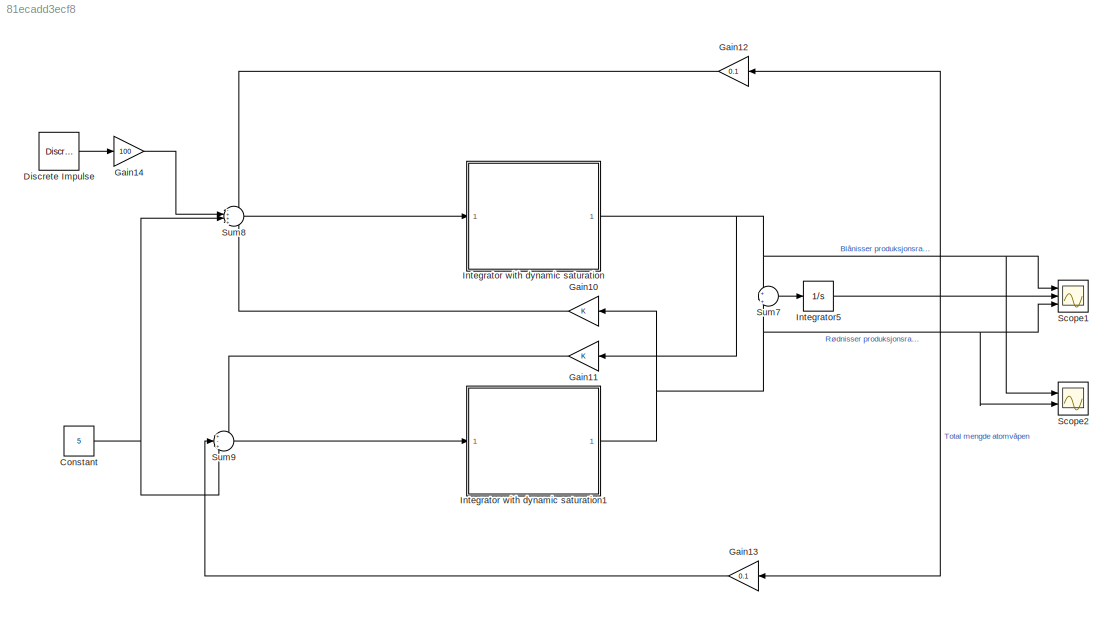
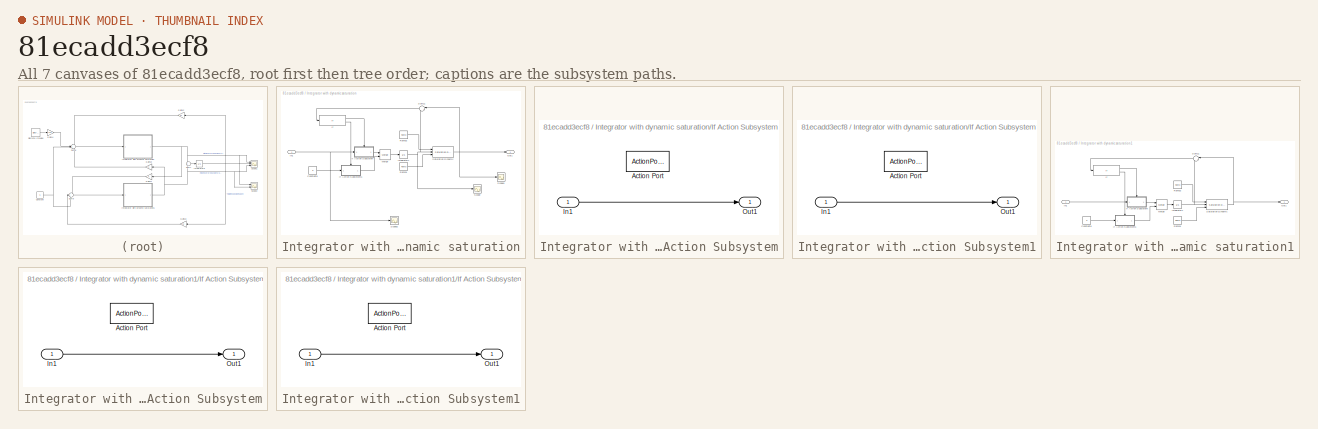
[diagram: thumbnail index - all 7 canvases of the model, root first then tree order]
MODEL slx_81ecadd3ecf8
KIND model
CONFIG AbsTol = auto
CONFIG EnableMultiTasking = off
CONFIG FixedStep = auto
CONFIG MaxStep = auto
CONFIG MinStep = auto
CONFIG RelTol = 1e-3
CONFIG SampleTimeConstraint = Unconstrained
CONFIG Solver = VariableStepAuto
CONFIG SolverName = VariableStepAuto
CONFIG StartTime = 0.0
CONFIG StopTime = 60
BLOCK [Constant] Constant
  Value = 5
BLOCK [Reference] Discrete Impulse  REF=dspsrcs4/Discrete 
Impulse
  Ports = [0, 1]
  SourceBlock = dspsrcs4/Discrete \nImpulse
  SourceProductBaseCode = DS
  SourceProductName = DSP System Toolbox
  SourceType = Discrete Impulse
BLOCK [Gain] Gain10
  OutDataTypeStr = Inherit: Inherit via internal rule
  ParamDataTypeStr = Inherit: Inherit via internal rule
  SaturateOnIntegerOverflow = off
BLOCK [Gain] Gain11
  OutDataTypeStr = Inherit: Inherit via internal rule
  ParamDataTypeStr = Inherit: Inherit via internal rule
  SaturateOnIntegerOverflow = off
BLOCK [Gain] Gain12
  Gain = 0.1
  OutDataTypeStr = Inherit: Inherit via internal rule
  ParamDataTypeStr = Inherit: Inherit via internal rule
  SaturateOnIntegerOverflow = off
BLOCK [Gain] Gain13
  Gain = 0.1
  OutDataTypeStr = Inherit: Inherit via internal rule
  ParamDataTypeStr = Inherit: Inherit via internal rule
  SaturateOnIntegerOverflow = off
BLOCK [Gain] Gain14
  Gain = 100
  OutDataTypeStr = Inherit: Inherit via internal rule
  ParamDataTypeStr = Inherit: Inherit via internal rule
  SaturateOnIntegerOverflow = off
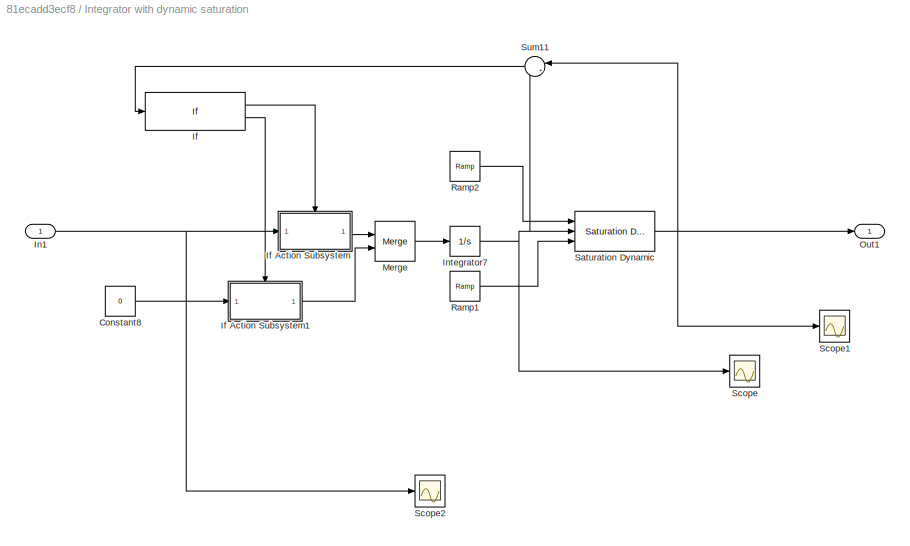
BLOCK [SubSystem] Integrator with dynamic saturation
  Ports = [1, 1]
  RequestExecContextInheritance = off
BLOCK [Constant] Integrator with dynamic saturation/Constant8
  Value = 0
BLOCK [If] Integrator with dynamic saturation/If
  IfExpression = u1 == 0
  Ports = [1, 2]
BLOCK [SubSystem] Integrator with dynamic saturation/If Action Subsystem
  Ports = [1, 1, 0, 0, 0, 0, 0, 1]
  RequestExecContextInheritance = off
  TreatAsAtomicUnit = on
BLOCK [ActionPort] Integrator with dynamic saturation/If Action Subsystem/Action Port
  ActionType = then
BLOCK [Inport] Integrator with dynamic saturation/If Action Subsystem/In1
  IconDisplay = Port number
BLOCK [Outport] Integrator with dynamic saturation/If Action Subsystem/Out1
  IconDisplay = Port number
BLOCK [SubSystem] Integrator with dynamic saturation/If Action Subsystem1
  Ports = [1, 1, 0, 0, 0, 0, 0, 1]
  RequestExecContextInheritance = off
  TreatAsAtomicUnit = on
BLOCK [ActionPort] Integrator with dynamic saturation/If Action Subsystem1/Action Port
  ActionType = else
BLOCK [Inport] Integrator with dynamic saturation/If Action Subsystem1/In1
  IconDisplay = Port number
BLOCK [Outport] Integrator with dynamic saturation/If Action Subsystem1/Out1
  IconDisplay = Port number
BLOCK [Inport] Integrator with dynamic saturation/In1
  IconDisplay = Port number
BLOCK [Integrator] Integrator with dynamic saturation/Integrator7
  Ports = [1, 1]
  ZeroCross = off
BLOCK [Merge] Integrator with dynamic saturation/Merge
  Ports = [2, 1]
BLOCK [Outport] Integrator with dynamic saturation/Out1
  IconDisplay = Port number
BLOCK [Reference] Integrator with dynamic saturation/Ramp1  REF=simulink/Sources/Ramp
  Ports = [0, 1]
  SourceBlock = simulink/Sources/Ramp
  SourceProductBaseCode = SL
  SourceProductName = Simulink
  SourceType = Ramp
BLOCK [Reference] Integrator with dynamic saturation/Ramp2  REF=simulink/Sources/Ramp
  Ports = [0, 1]
  SourceBlock = simulink/Sources/Ramp
  SourceProductBaseCode = SL
  SourceProductName = Simulink
  SourceType = Ramp
BLOCK [Reference] Integrator with dynamic saturation/Saturation Dynamic  REF=simulink/Discontinuities/Saturation
Dynamic
  Ports = [3, 1]
  SourceBlock = simulink/Discontinuities/Saturation\nDynamic
  SourceProductBaseCode = SL
  SourceProductName = Simulink
  SourceType = Saturation Dynamic
BLOCK [Scope] Integrator with dynamic saturation/Scope
  Floating = off
  NumInputPorts = 1
  Ports = [1]
  ScopeSpecificationString = Simulink.scopes.TimeScopeBlockCfg('CurrentConfiguration', extmgr.ConfigurationSet(extmgr.Configuration('Core','General UI',true),extmgr.Configuration('Core','Source UI',true),extmgr.Configuration('Sources','WiredSimulink',true,'DataLoggingVariableName','ScopeData3'),extmgr.Configuration('Visuals','Time Domain',true,'SerializedDisplays',{struct('MinYLimReal','-3.42612','MaxYLimReal','20.63573','YLa...<+1374ch>
BLOCK [Scope] Integrator with dynamic saturation/Scope1
  Floating = off
  NumInputPorts = 1
  Ports = [1]
  ScopeSpecificationString = Simulink.scopes.TimeScopeBlockCfg('CurrentConfiguration', extmgr.ConfigurationSet(extmgr.Configuration('Core','General UI',true),extmgr.Configuration('Core','Source UI',true),extmgr.Configuration('Sources','WiredSimulink',true,'DataLoggingVariableName','ScopeData4'),extmgr.Configuration('Visuals','Time Domain',true,'SerializedDisplays',{struct('MinYLimReal','-2.95369','MaxYLimReal','20.58324','YLa...<+1381ch>
BLOCK [Scope] Integrator with dynamic saturation/Scope2
  Floating = off
  NumInputPorts = 1
  Ports = [1]
  ScopeSpecificationString = Simulink.scopes.TimeScopeBlockCfg('CurrentConfiguration', extmgr.ConfigurationSet(extmgr.Configuration('Core','General UI',true),extmgr.Configuration('Core','Source UI',true),extmgr.Configuration('Sources','WiredSimulink',true,'DataLoggingVariableName','ScopeData5'),extmgr.Configuration('Visuals','Time Domain',true,'SerializedDisplays',{struct('MinYLimReal','-38.31097','MaxYLimReal','121.10835','Y...<+1372ch>
BLOCK [Sum] Integrator with dynamic saturation/Sum11
  IconShape = round
  InputSameDT = off
  Inputs = |+-
  OutDataTypeStr = Inherit: Inherit via internal rule
  Ports = [2, 1]
  SaturateOnIntegerOverflow = off
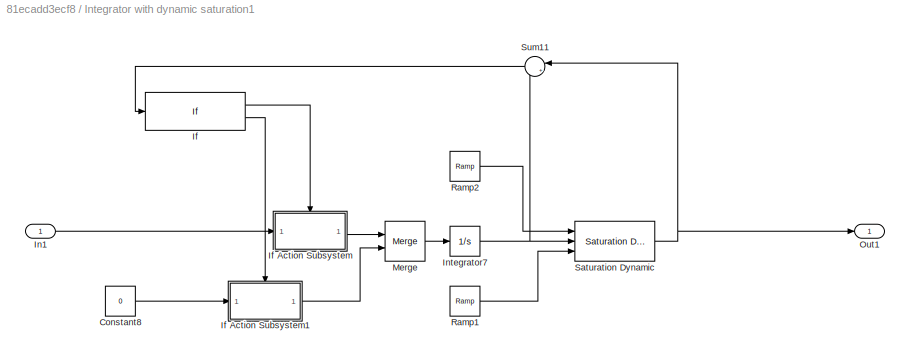
BLOCK [SubSystem] Integrator with dynamic saturation1
  Ports = [1, 1]
  RequestExecContextInheritance = off
BLOCK [Constant] Integrator with dynamic saturation1/Constant8
  Value = 0
BLOCK [If] Integrator with dynamic saturation1/If
  IfExpression = u1 == 0
  Ports = [1, 2]
BLOCK [SubSystem] Integrator with dynamic saturation1/If Action Subsystem
  Ports = [1, 1, 0, 0, 0, 0, 0, 1]
  RequestExecContextInheritance = off
  TreatAsAtomicUnit = on
BLOCK [ActionPort] Integrator with dynamic saturation1/If Action Subsystem/Action Port
  ActionType = then
BLOCK [Inport] Integrator with dynamic saturation1/If Action Subsystem/In1
  IconDisplay = Port number
BLOCK [Outport] Integrator with dynamic saturation1/If Action Subsystem/Out1
  IconDisplay = Port number
BLOCK [SubSystem] Integrator with dynamic saturation1/If Action Subsystem1
  Ports = [1, 1, 0, 0, 0, 0, 0, 1]
  RequestExecContextInheritance = off
  TreatAsAtomicUnit = on
BLOCK [ActionPort] Integrator with dynamic saturation1/If Action Subsystem1/Action Port
  ActionType = else
BLOCK [Inport] Integrator with dynamic saturation1/If Action Subsystem1/In1
  IconDisplay = Port number
BLOCK [Outport] Integrator with dynamic saturation1/If Action Subsystem1/Out1
  IconDisplay = Port number
BLOCK [Inport] Integrator with dynamic saturation1/In1
  IconDisplay = Port number
BLOCK [Integrator] Integrator with dynamic saturation1/Integrator7
  Ports = [1, 1]
  ZeroCross = off
BLOCK [Merge] Integrator with dynamic saturation1/Merge
  Ports = [2, 1]
BLOCK [Outport] Integrator with dynamic saturation1/Out1
  IconDisplay = Port number
BLOCK [Reference] Integrator with dynamic saturation1/Ramp1  REF=simulink/Sources/Ramp
  Ports = [0, 1]
  SourceBlock = simulink/Sources/Ramp
  SourceProductBaseCode = SL
  SourceProductName = Simulink
  SourceType = Ramp
BLOCK [Reference] Integrator with dynamic saturation1/Ramp2  REF=simulink/Sources/Ramp
  Ports = [0, 1]
  SourceBlock = simulink/Sources/Ramp
  SourceProductBaseCode = SL
  SourceProductName = Simulink
  SourceType = Ramp
BLOCK [Reference] Integrator with dynamic saturation1/Saturation Dynamic  REF=simulink/Discontinuities/Saturation
Dynamic
  Ports = [3, 1]
  SourceBlock = simulink/Discontinuities/Saturation\nDynamic
  SourceProductBaseCode = SL
  SourceProductName = Simulink
  SourceType = Saturation Dynamic
BLOCK [Sum] Integrator with dynamic saturation1/Sum11
  IconShape = round
  InputSameDT = off
  Inputs = |+-
  OutDataTypeStr = Inherit: Inherit via internal rule
  Ports = [2, 1]
  SaturateOnIntegerOverflow = off
BLOCK [Integrator] Integrator5
  LimitOutput = on
  LowerSaturationLimit = 0
  Ports = [1, 1]
BLOCK [Scope] Scope1
  Floating = off
  NumInputPorts = 3
  Ports = [3]
  ScopeSpecificationString = Simulink.scopes.TimeScopeBlockCfg('CurrentConfiguration', extmgr.ConfigurationSet(extmgr.Configuration('Core','General UI',true),extmgr.Configuration('Core','Source UI',true),extmgr.Configuration('Sources','WiredSimulink',true,'DataLoggingVariableName','ScopeData1'),extmgr.Configuration('Visuals','Time Domain',true,'SerializedDisplays',{struct('MinYLimReal','-34.6863','MaxYLimReal','306.17669','YL...<+1607ch>
BLOCK [Scope] Scope2
  Floating = off
  NumInputPorts = 2
  Ports = [2]
  ScopeSpecificationString = Simulink.scopes.TimeScopeBlockCfg('CurrentConfiguration', extmgr.ConfigurationSet(extmgr.Configuration('Core','General UI',true),extmgr.Configuration('Core','Source UI',true),extmgr.Configuration('Sources','WiredSimulink',true,'DataLoggingVariableName','ScopeData2'),extmgr.Configuration('Visuals','Time Domain',true,'SerializedDisplays',{struct('MinYLimReal','-2.95369','MaxYLimReal','20.58324','YLa...<+1456ch>
BLOCK [Sum] Sum7
  IconShape = round
  InputSameDT = off
  Inputs = +|+
  OutDataTypeStr = Inherit: Inherit via internal rule
  Ports = [2, 1]
  SaturateOnIntegerOverflow = off
BLOCK [Sum] Sum8
  IconShape = round
  InputSameDT = off
  Inputs = -+++
  OutDataTypeStr = Inherit: Inherit via internal rule
  Ports = [4, 1]
  SaturateOnIntegerOverflow = off
BLOCK [Sum] Sum9
  IconShape = round
  InputSameDT = off
  Inputs = +-+
  OutDataTypeStr = Inherit: Inherit via internal rule
  Ports = [3, 1]
  SaturateOnIntegerOverflow = off
NET Constant:1 -> Sum8:3, Sum9:3
LINE Discrete Impulse:1 -> Gain14:1
LINE Gain10:1 -> Sum8:4
LINE Gain11:1 -> Sum9:1
LINE Gain12:1 -> Sum8:1
LINE Gain13:1 -> Sum9:2
LINE Gain14:1 -> Sum8:2
LINE Integrator with dynamic saturation/Constant8:1 -> Integrator with dynamic saturation/If Action Subsystem1:1
LINE Integrator with dynamic saturation/If Action Subsystem/In1:1 -> Integrator with dynamic saturation/If Action Subsystem/Out1:1
LINE Integrator with dynamic saturation/If Action Subsystem1/In1:1 -> Integrator with dynamic saturation/If Action Subsystem1/Out1:1
LINE Integrator with dynamic saturation/If Action Subsystem1:1 -> Integrator with dynamic saturation/Merge:2
LINE Integrator with dynamic saturation/If Action Subsystem:1 -> Integrator with dynamic saturation/Merge:1
LINE Integrator with dynamic saturation/If:1 -> Integrator with dynamic saturation/If Action Subsystem:ifaction
LINE Integrator with dynamic saturation/If:2 -> Integrator with dynamic saturation/If Action Subsystem1:ifaction
NET Integrator with dynamic saturation/In1:1 -> Integrator with dynamic saturation/If Action Subsystem:1, Integrator with dynamic saturation/Scope2:1
NET Integrator with dynamic saturation/Integrator7:1 -> Integrator with dynamic saturation/Saturation Dynamic:2, Integrator with dynamic saturation/Scope:1, Integrator with dynamic saturation/Sum11:2
LINE Integrator with dynamic saturation/Merge:1 -> Integrator with dynamic saturation/Integrator7:1
LINE Integrator with dynamic saturation/Ramp1:1 -> Integrator with dynamic saturation/Saturation Dynamic:3
LINE Integrator with dynamic saturation/Ramp2:1 -> Integrator with dynamic saturation/Saturation Dynamic:1
NET Integrator with dynamic saturation/Saturation Dynamic:1 -> Integrator with dynamic saturation/Out1:1, Integrator with dynamic saturation/Scope1:1, Integrator with dynamic saturation/Sum11:1
LINE Integrator with dynamic saturation/Sum11:1 -> Integrator with dynamic saturation/If:1
LINE Integrator with dynamic saturation1/Constant8:1 -> Integrator with dynamic saturation1/If Action Subsystem1:1
LINE Integrator with dynamic saturation1/If Action Subsystem/In1:1 -> Integrator with dynamic saturation1/If Action Subsystem/Out1:1
LINE Integrator with dynamic saturation1/If Action Subsystem1/In1:1 -> Integrator with dynamic saturation1/If Action Subsystem1/Out1:1
LINE Integrator with dynamic saturation1/If Action Subsystem1:1 -> Integrator with dynamic saturation1/Merge:2
LINE Integrator with dynamic saturation1/If Action Subsystem:1 -> Integrator with dynamic saturation1/Merge:1
LINE Integrator with dynamic saturation1/If:1 -> Integrator with dynamic saturation1/If Action Subsystem:ifaction
LINE Integrator with dynamic saturation1/If:2 -> Integrator with dynamic saturation1/If Action Subsystem1:ifaction
LINE Integrator with dynamic saturation1/In1:1 -> Integrator with dynamic saturation1/If Action Subsystem:1
NET Integrator with dynamic saturation1/Integrator7:1 -> Integrator with dynamic saturation1/Saturation Dynamic:2, Integrator with dynamic saturation1/Sum11:2
LINE Integrator with dynamic saturation1/Merge:1 -> Integrator with dynamic saturation1/Integrator7:1
LINE Integrator with dynamic saturation1/Ramp1:1 -> Integrator with dynamic saturation1/Saturation Dynamic:3
LINE Integrator with dynamic saturation1/Ramp2:1 -> Integrator with dynamic saturation1/Saturation Dynamic:1
NET Integrator with dynamic saturation1/Saturation Dynamic:1 -> Integrator with dynamic saturation1/Out1:1, Integrator with dynamic saturation1/Sum11:1
LINE Integrator with dynamic saturation1/Sum11:1 -> Integrator with dynamic saturation1/If:1
NET Integrator with dynamic saturation1:1 -> Gain10:1, Scope1:3, Scope2:2, Sum7:2
NET Integrator with dynamic saturation:1 -> Gain11:1, Scope1:1, Scope2:1, Sum7:1
NET Integrator5:1 -> Gain12:1, Gain13:1, Scope1:2
LINE Sum7:1 -> Integrator5:1
LINE Sum8:1 -> Integrator with dynamic saturation:1
LINE Sum9:1 -> Integrator with dynamic saturation1:1
note: NET lines group one-source signal fan-out (src -> all destinations, sorted); 1:1 wires keep LINE
